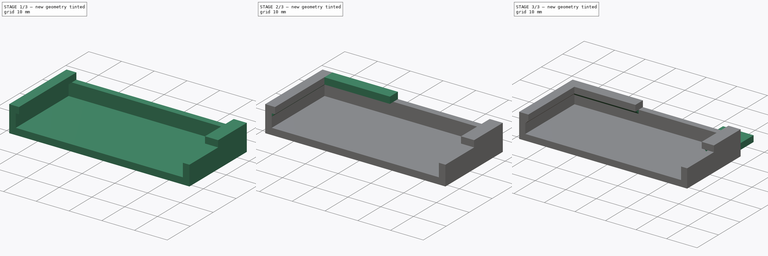
[diagram: build sequence overview — one tinted view per stage of 3, left to right]
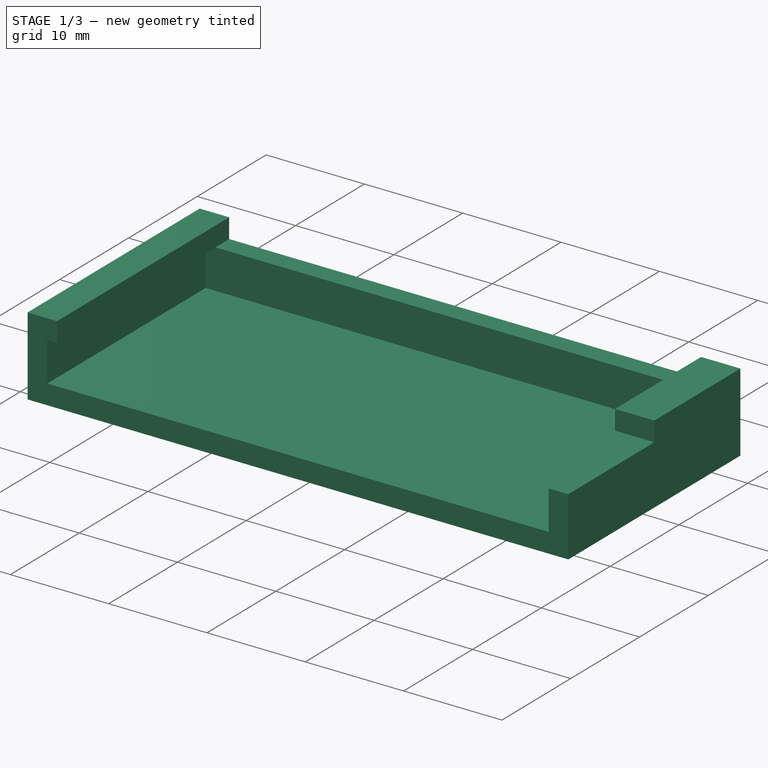
[diagram: stage 1 of 3 — iso view after this stage's code; geometry added in this stage tinted green]
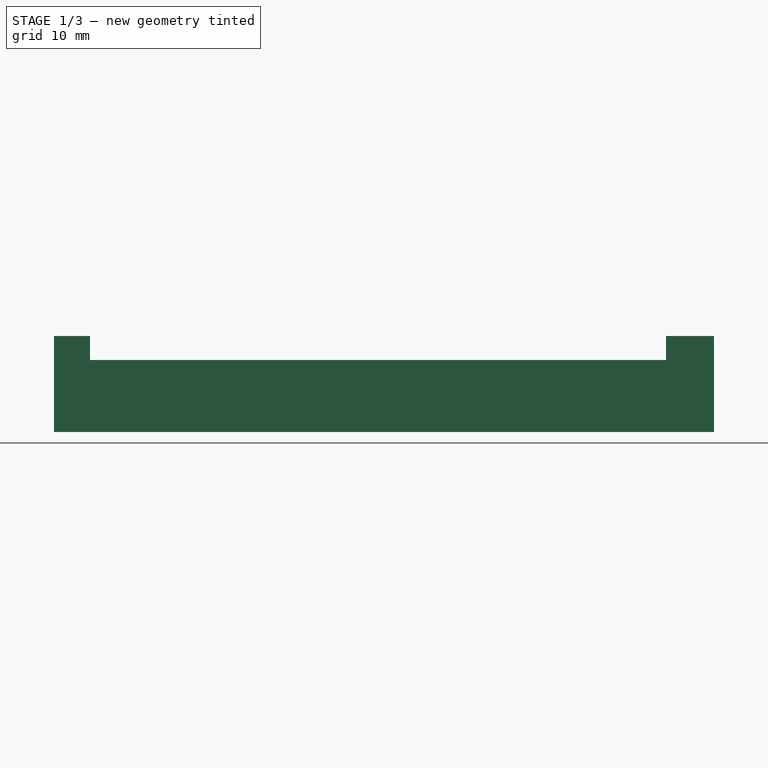
[diagram: stage 1 of 3 — front view after this stage's code; geometry added in this stage tinted green]
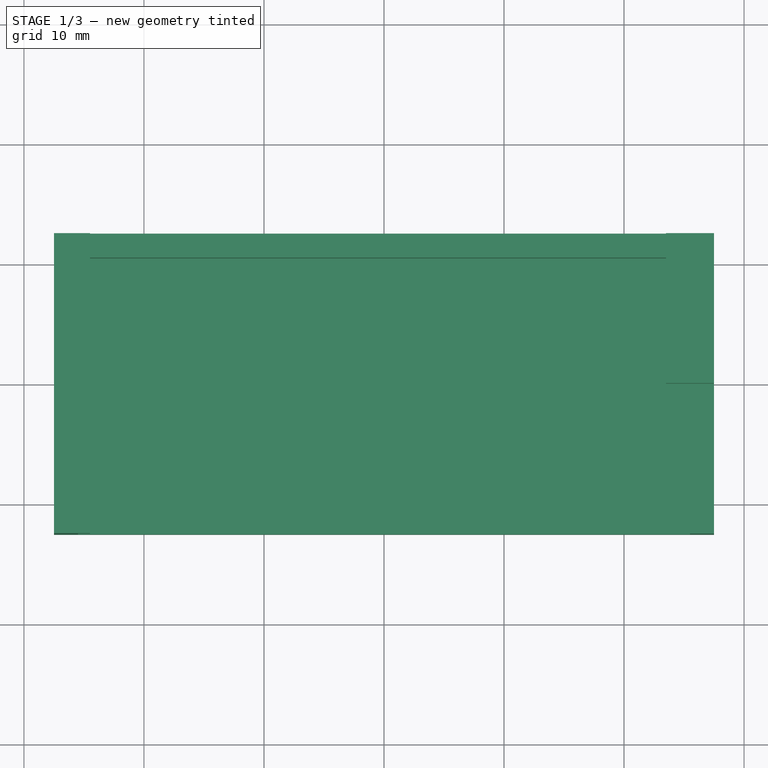
[diagram: stage 1 of 3 — top view after this stage's code; geometry added in this stage tinted green]
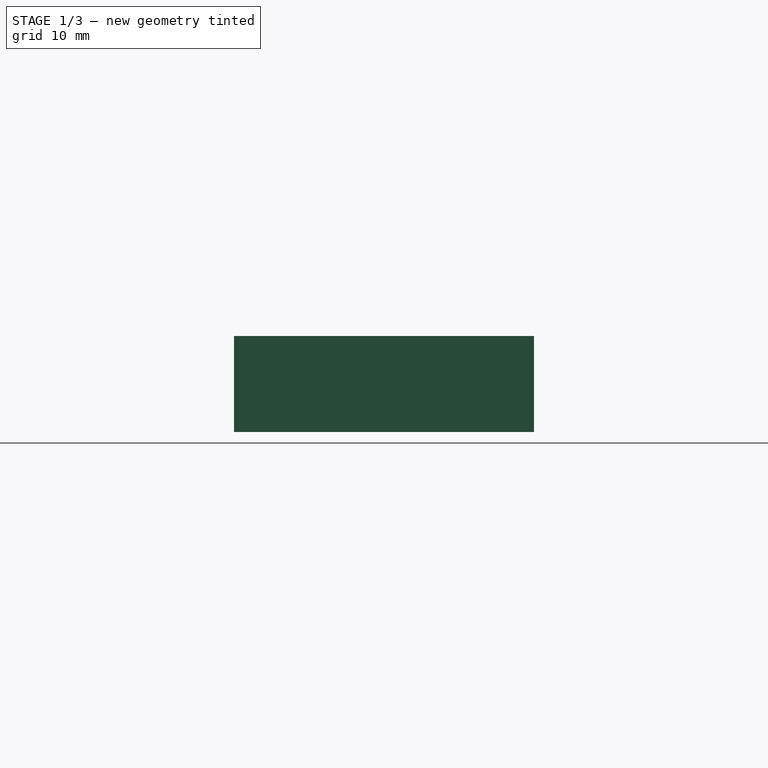
[diagram: stage 1 of 3 — right view after this stage's code; geometry added in this stage tinted green]
FCSTD DOCUMENT  (FreeCAD 0.16R6706 (Git))
Label: POVBaseDriver
License: All rights reserved
LicenseURL: http://en.wikipedia.org/wiki/All_rights_reserved
objects: Sketcher::SketchObject×5, PartDesign::Pad×5, PartDesign::Chamfer×3
note: 18 computed .brp shape members not serialized (recipe doc carries the construction recipe); baked Part::Feature solids carry a one-line shape summary decoded from their .brp

FEATURE [Sketcher::SketchObject] Sketch
  sketch-geometry (4):
    g0: LineSegment StartX=-27.5 StartY=12.5 StartZ=0 EndX=27.5 EndY=12.5 EndZ=0
    g1: LineSegment StartX=27.5 StartY=12.5 StartZ=0 EndX=27.5 EndY=-12.5 EndZ=0
    g2: LineSegment StartX=27.5 StartY=-12.5 StartZ=0 EndX=-27.5 EndY=-12.5 EndZ=0
    g3: LineSegment StartX=-27.5 StartY=-12.5 StartZ=0 EndX=-27.5 EndY=12.5 EndZ=0
  constraints (12):
    c: Coincident(g0,g1)
    c: Coincident(g1,g2)
    c: Coincident(g2,g3)
    c: Coincident(g3,g0)
    c: Horizontal(g0)
    c: Horizontal(g2)
    c: Vertical(g1)
    c: Vertical(g3)
    c: Distance(g0) = 55
    c: Distance(g3) = 25
    c: DistanceX(g-2,g0) = -27.5
    c: DistanceY(g-1,g0) = 12.5
FEATURE [PartDesign::Pad] Pad  label="Bottom"
  Length = 2
  Length2 = 100
  Sketch = -> Sketch
  Type = 0
FEATURE [Sketcher::SketchObject] Sketch001
  Placement = pos=(0,0,2) rot=(0,0,1;0rad)
  Support = -> Pad [Face6]
  sketch-geometry (12):
    g0: LineSegment StartX=-27.5 StartY=12.5 StartZ=0 EndX=-25.5 EndY=12.5 EndZ=0
    g1: LineSegment StartX=-25.5 StartY=12.5 StartZ=0 EndX=-25.5 EndY=-12.5 EndZ=0
    g2: LineSegment StartX=-25.5 StartY=-12.5 StartZ=0 EndX=-27.5 EndY=-12.5 EndZ=0
    g3: LineSegment StartX=-27.5 StartY=-12.5 StartZ=0 EndX=-27.5 EndY=12.5 EndZ=0
    g4: LineSegment StartX=25.5 StartY=12.5 StartZ=0 EndX=27.5 EndY=12.5 EndZ=0
    g5: LineSegment StartX=27.5 StartY=12.5 StartZ=0 EndX=27.5 EndY=-12.5 EndZ=0
    g6: LineSegment StartX=27.5 StartY=-12.5 StartZ=0 EndX=25.5 EndY=-12.5 EndZ=0
    g7: LineSegment StartX=25.5 StartY=-12.5 StartZ=0 EndX=25.5 EndY=12.5 EndZ=0
    g8: LineSegment StartX=-25.5 StartY=12.5 StartZ=0 EndX=25.5 EndY=12.5 EndZ=0
    g9: LineSegment StartX=25.5 StartY=12.5 StartZ=0 EndX=25.5 EndY=10.5 EndZ=0
    g10: LineSegment StartX=25.5 StartY=10.5 StartZ=0 EndX=-25.5 EndY=10.5 EndZ=0
    g11: LineSegment StartX=-25.5 StartY=10.5 StartZ=0 EndX=-25.5 EndY=12.5 EndZ=0
  constraints (36):
    c: Coincident(g0,g1)
    c: Coincident(g1,g2)
    c: Coincident(g2,g3)
    c: Coincident(g3,g0)
    c: Horizontal(g0)
    c: Horizontal(g2)
    c: Vertical(g1)
    c: Vertical(g3)
    c: Distance(g0) = 2
    c: Distance(g3) = 25
    c: DistanceX(g-2,g0) = -27.5
    c: DistanceY(g-1,g0) = 12.5
    c: Coincident(g4,g5)
    c: Coincident(g5,g6)
    c: Coincident(g6,g7)
    c: Coincident(g7,g4)
    c: Horizontal(g4)
    c: Horizontal(g6)
    c: Vertical(g5)
    c: Vertical(g7)
    c: Distance(g4) = 2
    c: Distance(g5) = 25
    c: DistanceX(g-2,g4) = 27.5
    c: DistanceY(g-1,g4) = 12.5
    c: Coincident(g8,g9)
    c: Coincident(g9,g10)
    c: Coincident(g10,g11)
    c: Coincident(g11,g8)
    c: Horizontal(g8)
    c: Horizontal(g10)
    c: Vertical(g9)
    c: Vertical(g11)
    c: Distance(g8) = 51
    c: Distance(g9) = 2
    c: DistanceY(g-1,g8) = 12.5
    c: DistanceX(g-2,g8) = 25.5
FEATURE [PartDesign::Pad] Pad001
  Length = 4
  Length2 = 100
  Sketch = -> Sketch001
  Type = 0
FEATURE [Sketcher::SketchObject] Sketch002
  Placement = pos=(0,0,6) rot=(0,0,1;0rad)
  Support = -> Pad001 [Face14]
  sketch-geometry (8):
    g0: LineSegment StartX=-27.5 StartY=12.5 StartZ=0 EndX=-24.5 EndY=12.5 EndZ=0
    g1: LineSegment StartX=-24.5 StartY=12.5 StartZ=0 EndX=-24.5 EndY=-12.5 EndZ=0
    g2: LineSegment StartX=-24.5 StartY=-12.5 StartZ=0 EndX=-27.5 EndY=-12.5 EndZ=0
    g3: LineSegment StartX=-27.5 StartY=-12.5 StartZ=0 EndX=-27.5 EndY=12.5 EndZ=0
    g4: LineSegment StartX=27.5 StartY=12.5 StartZ=0 EndX=23.5 EndY=12.5 EndZ=0
    g5: LineSegment StartX=23.5 StartY=12.5 StartZ=0 EndX=23.5 EndY=0 EndZ=0
    g6: LineSegment StartX=23.5 StartY=0 StartZ=0 EndX=27.5 EndY=0 EndZ=0
    g7: LineSegment StartX=27.5 StartY=0 StartZ=0 EndX=27.5 EndY=12.5 EndZ=0
  constraints (24):
    c: Coincident(g0,g1)
    c: Coincident(g1,g2)
    c: Coincident(g2,g3)
    c: Coincident(g3,g0)
    c: Horizontal(g0)
    c: Horizontal(g2)
    c: Vertical(g1)
    c: Vertical(g3)
    c: Distance(g3) = 25
    c: Distance(g0) = 3
    c: DistanceX(g-2,g0) = -27.5
    c: DistanceY(g-1,g0) = 12.5
    c: Coincident(g4,g5)
    c: Coincident(g5,g6)
    c: Coincident(g6,g7)
    c: Coincident(g7,g4)
    c: Horizontal(g4)
    c: Horizontal(g6)
    c: Vertical(g5)
    c: Vertical(g7)
    c: PointOnObject(g5,g-1)
    c: Distance(g4) = 4
    c: DistanceX(g-2,g4) = 27.5
    c: DistanceY(g-1,g4) = 12.5
FEATURE [PartDesign::Pad] Pad002  label="DriverMount"
  Length = 2
  Length2 = 100
  Sketch = -> Sketch002
  Type = 0
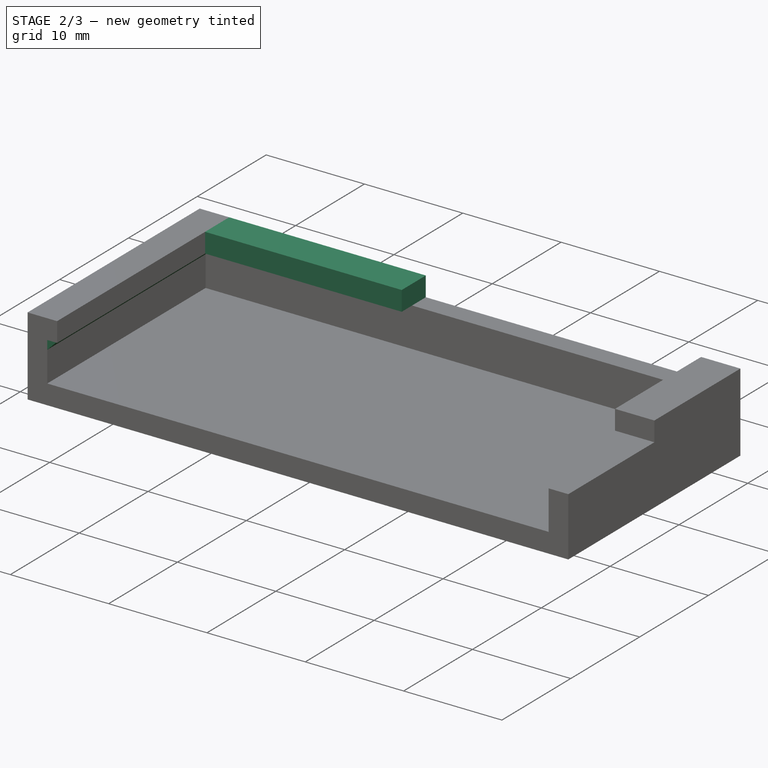
[diagram: stage 2 of 3 — iso view after this stage's code; geometry added in this stage tinted green]
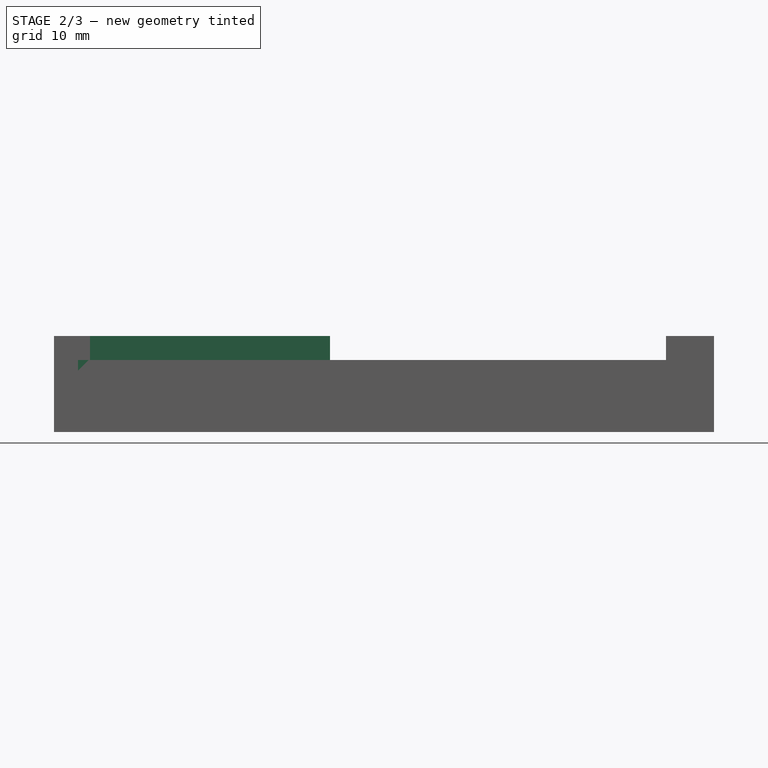
[diagram: stage 2 of 3 — front view after this stage's code; geometry added in this stage tinted green]
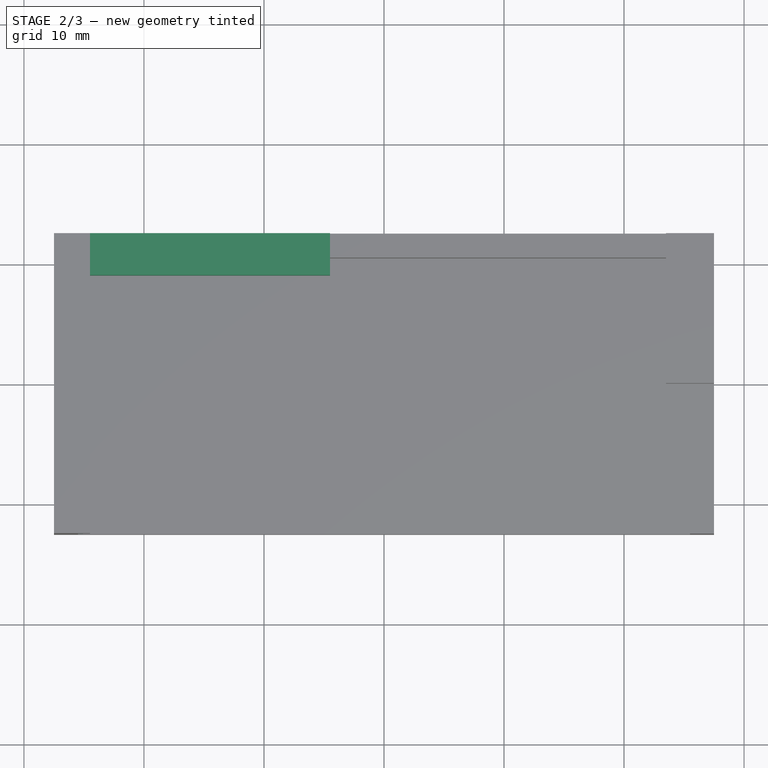
[diagram: stage 2 of 3 — top view after this stage's code; geometry added in this stage tinted green]
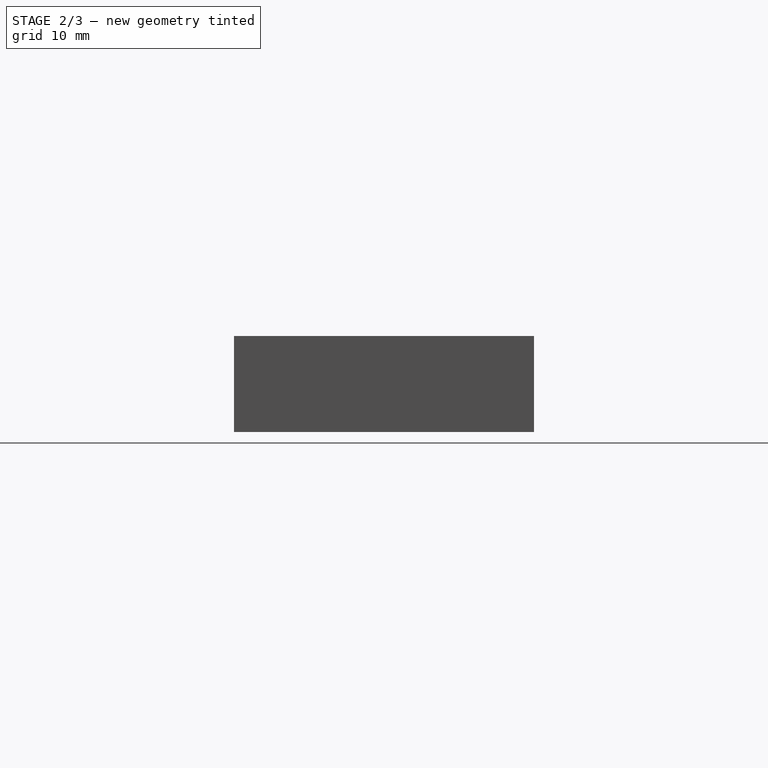
[diagram: stage 2 of 3 — right view after this stage's code; geometry added in this stage tinted green]
FEATURE [Sketcher::SketchObject] Sketch003
  ExternalGeometry = -> [Pad002]
  Placement = pos=(0,0,6) rot=(0,0,1;0rad)
  Support = -> Pad002 [Face15]
  sketch-geometry (4):
    g0: LineSegment StartX=-24.5 StartY=12.5 StartZ=0 EndX=-4.5 EndY=12.5 EndZ=0
    g1: LineSegment StartX=-4.5 StartY=12.5 StartZ=0 EndX=-4.5 EndY=9 EndZ=0
    g2: LineSegment StartX=-4.5 StartY=9 StartZ=0 EndX=-24.5 EndY=9 EndZ=0
    g3: LineSegment StartX=-24.5 StartY=9 StartZ=0 EndX=-24.5 EndY=12.5 EndZ=0
  constraints (12):
    c: Coincident(g0,g1)
    c: Coincident(g1,g2)
    c: Coincident(g2,g3)
    c: Coincident(g3,g0)
    c: Horizontal(g0)
    c: Horizontal(g2)
    c: Vertical(g1)
    c: Vertical(g3)
    c: PointOnObject(g0,g-4)
    c: Distance(g2) = 20
    c: Distance(g1) = 3.5
    c: Coincident(g-4,g0)
FEATURE [PartDesign::Pad] Pad003
  Length = 2
  Length2 = 100
  Sketch = -> Sketch003
  Type = 0
FEATURE [PartDesign::Chamfer] Chamfer
  Base = -> Pad003 [Edge56]
  Size = 0.9
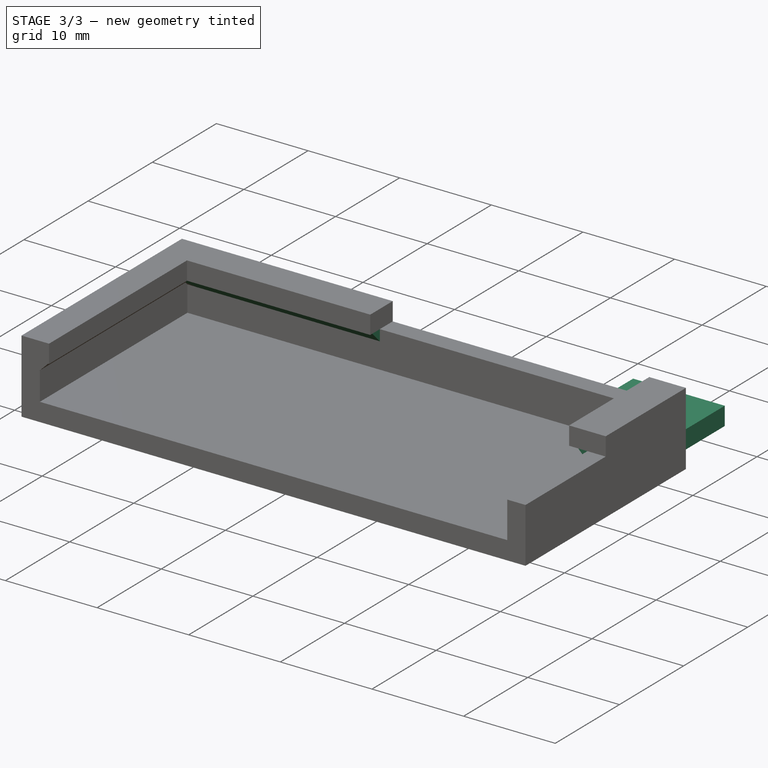
[diagram: stage 3 of 3 — iso view after this stage's code; geometry added in this stage tinted green]
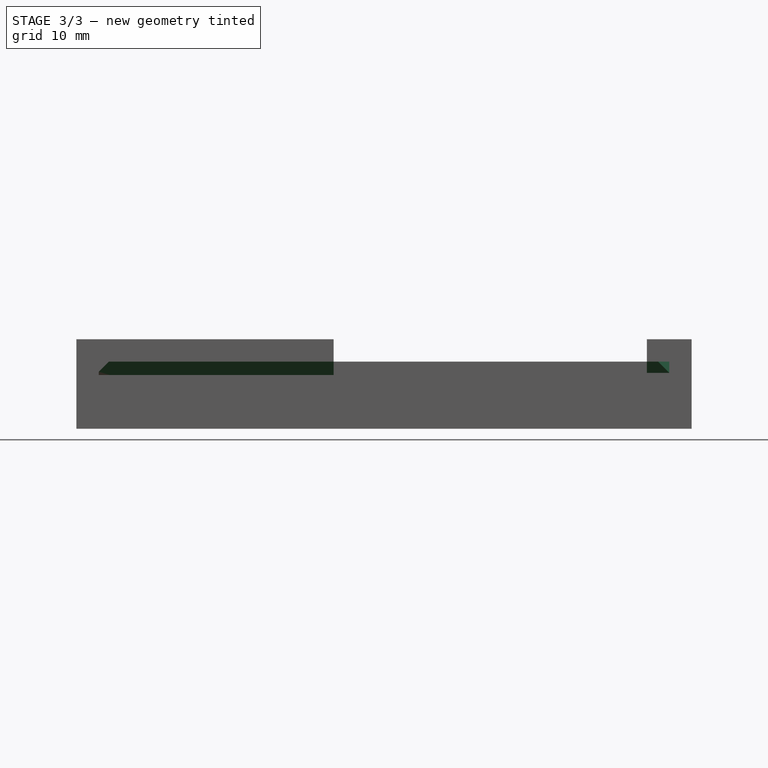
[diagram: stage 3 of 3 — front view after this stage's code; geometry added in this stage tinted green]
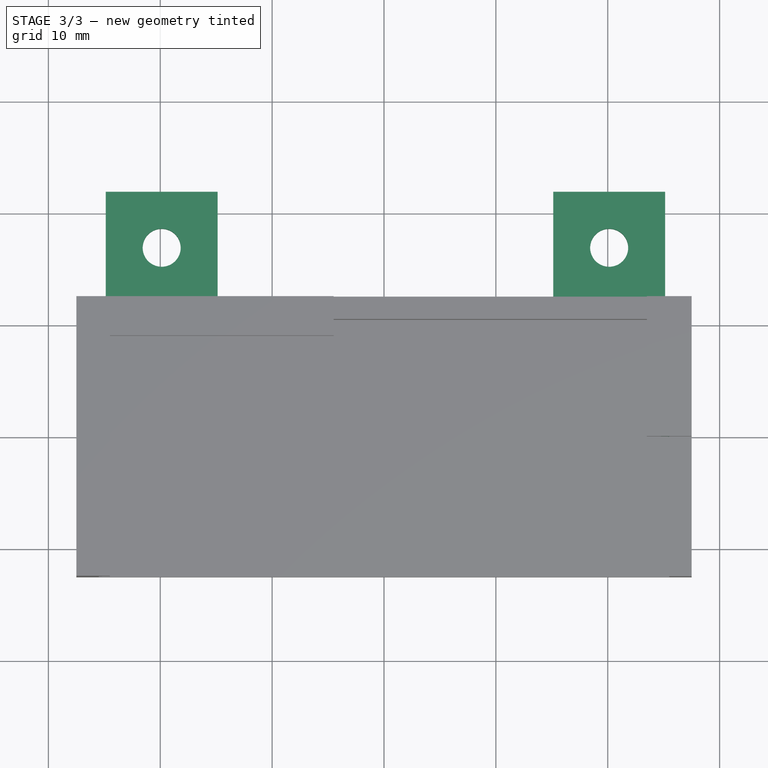
[diagram: stage 3 of 3 — top view after this stage's code; geometry added in this stage tinted green]
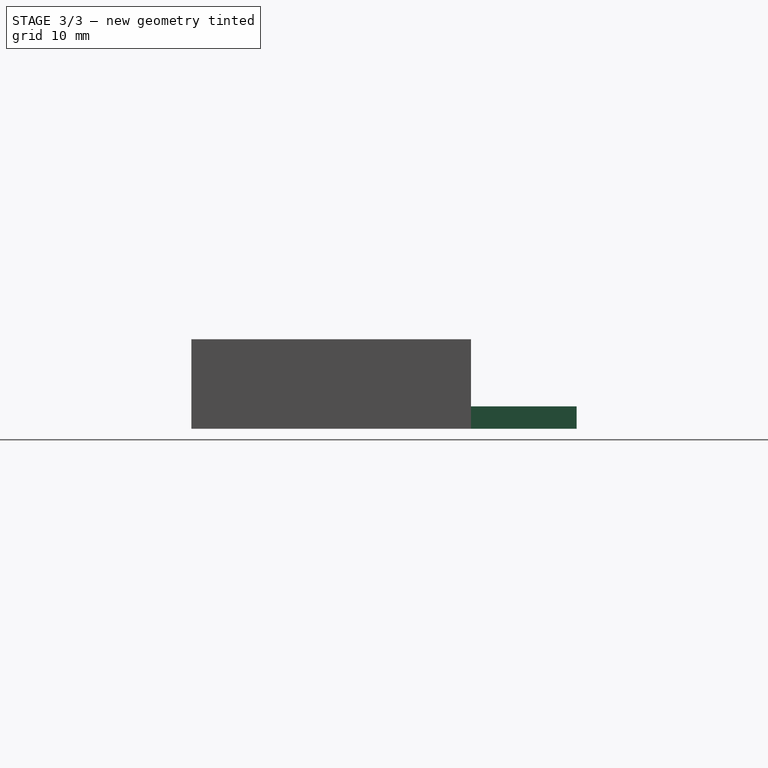
[diagram: stage 3 of 3 — right view after this stage's code; geometry added in this stage tinted green]
FEATURE [Sketcher::SketchObject] Sketch004
  sketch-geometry (10):
    g0: LineSegment StartX=-24.8728 StartY=21.9366 StartZ=0 EndX=-14.8728 EndY=21.9366 EndZ=0
    g1: LineSegment StartX=-14.8728 StartY=21.9366 StartZ=0 EndX=-14.8728 EndY=11.9366 EndZ=0
    g2: LineSegment StartX=-14.8728 StartY=11.9366 StartZ=0 EndX=-24.8728 EndY=11.9366 EndZ=0
    g3: LineSegment StartX=-24.8728 StartY=11.9366 StartZ=0 EndX=-24.8728 EndY=21.9366 EndZ=0
    g4: Circle CenterX=-19.8728 CenterY=16.9366 CenterZ=0 NormalX=0 NormalY=0 NormalZ=1 Radius=1.7
    g5: LineSegment StartX=15.1272 StartY=21.9366 StartZ=0 EndX=25.1272 EndY=21.9366 EndZ=0
    g6: LineSegment StartX=25.1272 StartY=21.9366 StartZ=0 EndX=25.1272 EndY=11.9366 EndZ=0
    g7: LineSegment StartX=25.1272 StartY=11.9366 StartZ=0 EndX=15.1272 EndY=11.9366 EndZ=0
    g8: LineSegment StartX=15.1272 StartY=11.9366 StartZ=0 EndX=15.1272 EndY=21.9366 EndZ=0
    g9: Circle CenterX=20.1272 CenterY=16.9366 CenterZ=0 NormalX=0 NormalY=0 NormalZ=1 Radius=1.7
  constraints (28):
    c: Coincident(g0,g1)
    c: Coincident(g1,g2)
    c: Coincident(g2,g3)
    c: Coincident(g3,g0)
    c: Horizontal(g0)
    c: Horizontal(g2)
    c: Vertical(g1)
    c: Vertical(g3)
    c: Distance(g3) = 10
    c: Distance(g0) = 10
    c: Radius(g4) = 1.7
    c: Distance(g4,g3) = 5
    c: Distance(g4,g0) = 5
    c: Coincident(g5,g6)
    c: Coincident(g6,g7)
    c: Coincident(g7,g8)
    c: Coincident(g8,g5)
    c: Horizontal(g5)
    c: Horizontal(g7)
    c: Vertical(g6)
    c: Vertical(g8)
    c: Distance(g5) = 10
    c: Distance(g8) = 10
    c: Distance(g9,g5) = 5
    c: Distance(g9,g6) = 5
    c: Radius(g9) = 1.7
    c: Distance(g4,g9) = 40
    c: DistanceY(g4,g9) = 0
FEATURE [PartDesign::Pad] Pad004
  Length = 2
  Length2 = 100
  Sketch = -> Sketch004
  Type = 0
FEATURE [PartDesign::Chamfer] Chamfer001
  Base = -> Chamfer [Edge28]
  Size = 1.2
FEATURE [PartDesign::Chamfer] Chamfer002
  Base = -> Chamfer001 [Edge39,Edge20]
  Size = 1
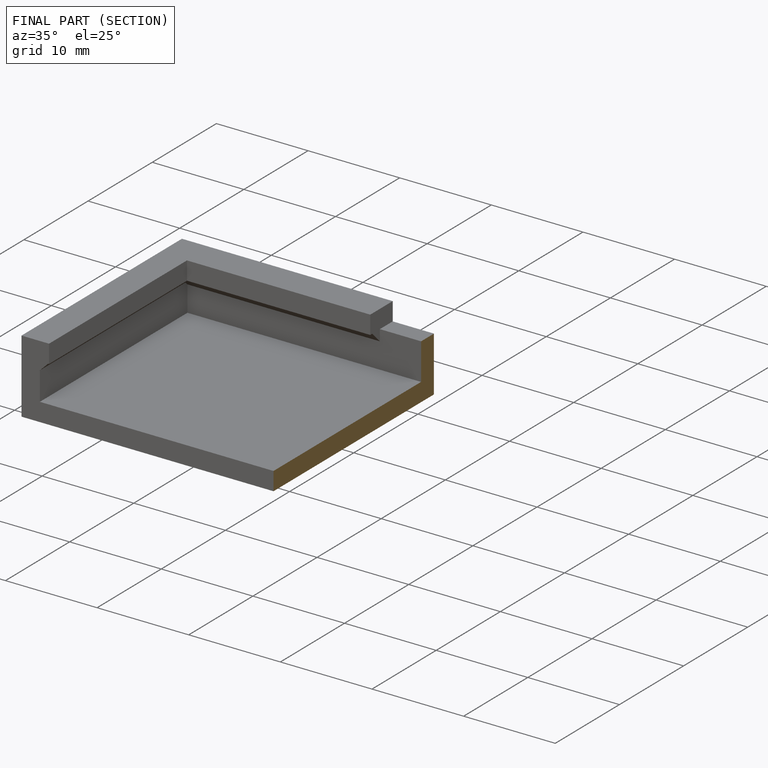
[diagram: finished part — half-section view (interior)]
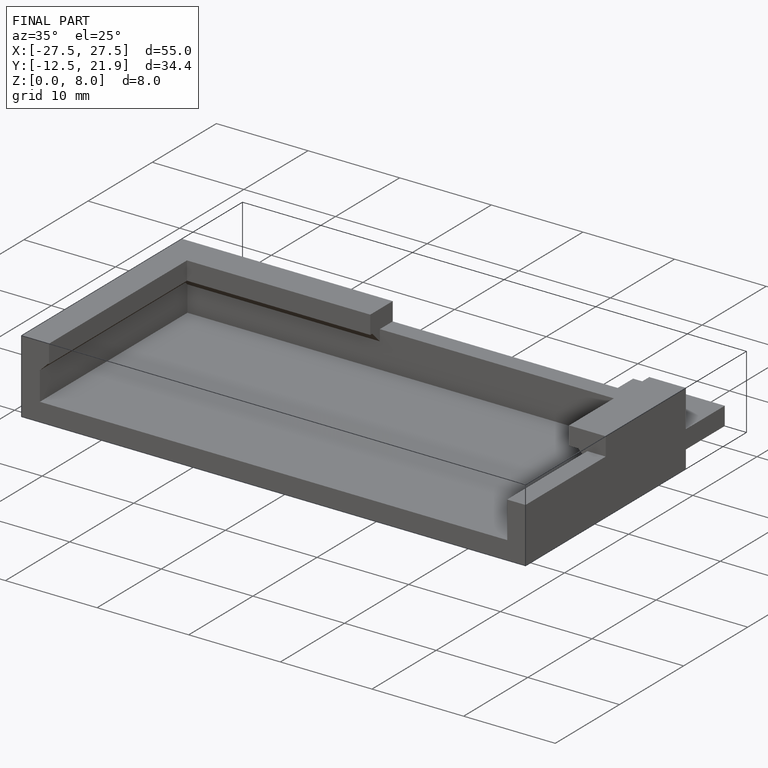
[diagram: finished part — iso view with bounding-box wireframe]
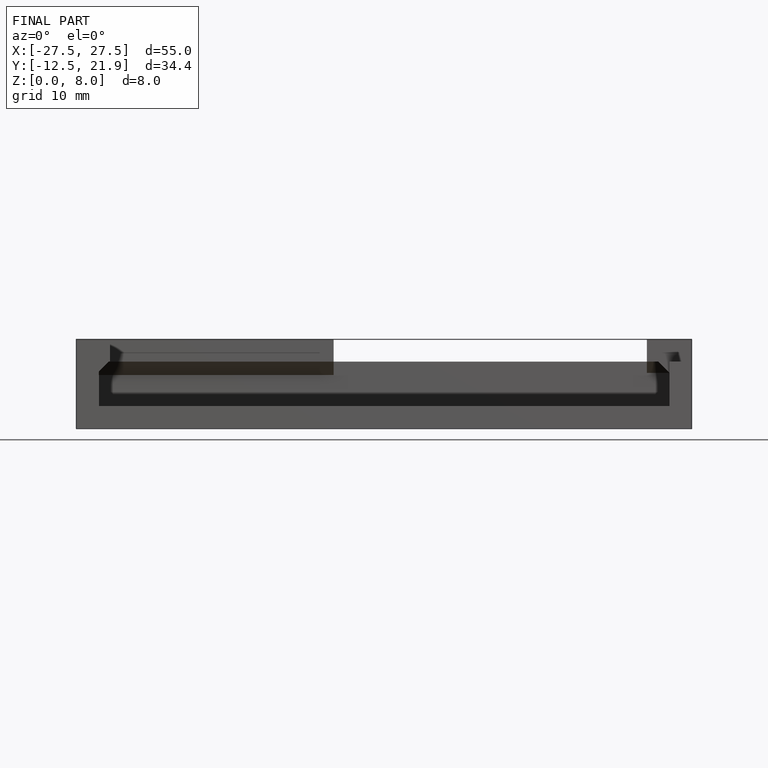
[diagram: finished part — front view with bounding-box wireframe]
